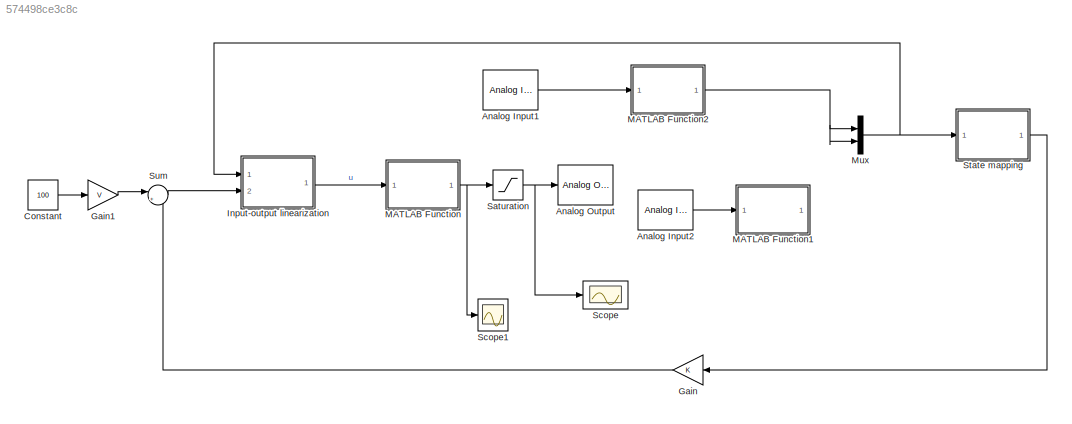
MODEL slx_574498ce3c8c
KIND model
CONFIG AbsTol = auto
CONFIG EnableMultiTasking = off
CONFIG FixedStep = auto
CONFIG MaxStep = auto
CONFIG MinStep = auto
CONFIG RelTol = 1e-3
CONFIG SampleTimeConstraint = Unconstrained
CONFIG SolverName = VariableStepAuto
CONFIG StartTime = 0.0
CONFIG StopTime = 300
BLOCK [Reference] Analog Input1  REF=sldrtlib/Analog Input
  AttributesFormatString = National Instruments\nPCIe-6321 [auto]
  Ports = [0, 1]
  SourceBlock = sldrtlib/Analog Input
  SourceProductBaseCode = WT
  SourceType = Simulink Desktop Real-Time Analog Input
BLOCK [Reference] Analog Input2  REF=sldrtlib/Analog Input
  AttributesFormatString = National Instruments\nPCIe-6321 [auto]
  Ports = [0, 1]
  SourceBlock = sldrtlib/Analog Input
  SourceProductBaseCode = WT
  SourceType = Simulink Desktop Real-Time Analog Input
BLOCK [Reference] Analog Output  REF=sldrtlib/Analog Output
  AttributesFormatString = National Instruments\nPCIe-6321 [auto]
  Ports = [1]
  SourceBlock = sldrtlib/Analog Output
  SourceProductBaseCode = WT
  SourceType = Simulink Desktop Real-Time Analog Output
BLOCK [Constant] Constant
  Value = 100
BLOCK [Gain] Gain
  Gain = K
  Multiplication = Matrix(K*u)
BLOCK [Gain] Gain1
  Gain = V
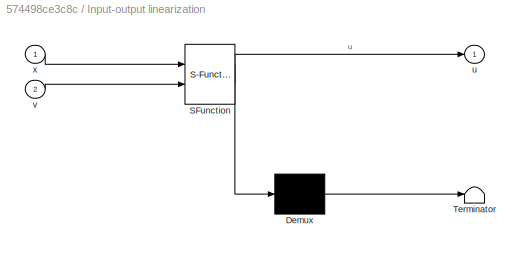
BLOCK [SubSystem] Input-output linearization
  ErrorFcn = Stateflow.Translate.translate
  PermitHierarchicalResolution = ExplicitOnly
  Ports = [2, 1]
  RequestExecContextInheritance = off
  SFBlockType = MATLAB Function
  TreatAsAtomicUnit = on
BLOCK [Demux] Input-output linearization/ Demux 
  Outputs = 1
  Ports = [1, 1]
BLOCK [S-Function] Input-output linearization/ SFunction 
  EnableBusSupport = on
  FunctionName = sf_sfun
  Parameters = p
  PortCounts = [2 2]
  Ports = [2, 2]
  SFcnIsStateOwnerBlock = off
  SFunctionDeploymentMode = off
  Tag = Stateflow S-Function 3
BLOCK [Terminator] Input-output linearization/ Terminator 
BLOCK [Outport] Input-output linearization/u
BLOCK [Inport] Input-output linearization/v
  Port = 2
BLOCK [Inport] Input-output linearization/x
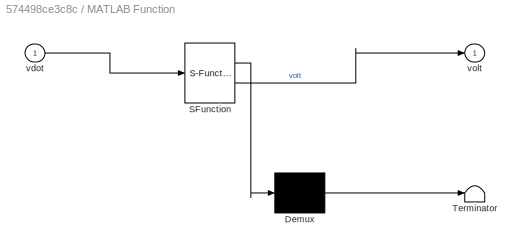
BLOCK [SubSystem] MATLAB Function
  ErrorFcn = Stateflow.Translate.translate
  PermitHierarchicalResolution = ExplicitOnly
  Ports = [1, 1]
  RequestExecContextInheritance = off
  SFBlockType = MATLAB Function
  TreatAsAtomicUnit = on
BLOCK [Demux] MATLAB Function/ Demux 
  Outputs = 1
  Ports = [1, 1]
BLOCK [S-Function] MATLAB Function/ SFunction 
  EnableBusSupport = on
  FunctionName = sf_sfun
  PortCounts = [1 2]
  Ports = [1, 2]
  SFcnIsStateOwnerBlock = off
  SFunctionDeploymentMode = off
  Tag = Stateflow S-Function 5
BLOCK [Terminator] MATLAB Function/ Terminator 
BLOCK [Inport] MATLAB Function/vdot
BLOCK [Outport] MATLAB Function/volt
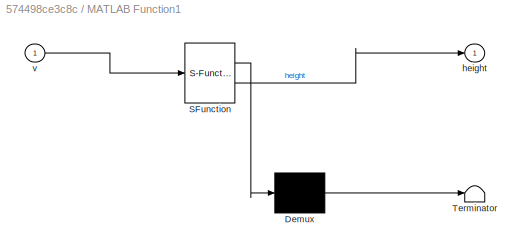
BLOCK [SubSystem] MATLAB Function1
  ErrorFcn = Stateflow.Translate.translate
  PermitHierarchicalResolution = ExplicitOnly
  Ports = [1, 1]
  RequestExecContextInheritance = off
  SFBlockType = MATLAB Function
  TreatAsAtomicUnit = on
BLOCK [Demux] MATLAB Function1/ Demux 
  Outputs = 1
  Ports = [1, 1]
BLOCK [S-Function] MATLAB Function1/ SFunction 
  EnableBusSupport = on
  FunctionName = sf_sfun
  PortCounts = [1 2]
  Ports = [1, 2]
  SFcnIsStateOwnerBlock = off
  SFunctionDeploymentMode = off
  Tag = Stateflow S-Function 4
BLOCK [Terminator] MATLAB Function1/ Terminator 
BLOCK [Outport] MATLAB Function1/height
BLOCK [Inport] MATLAB Function1/v
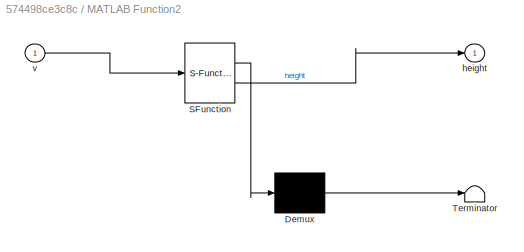
BLOCK [SubSystem] MATLAB Function2
  ErrorFcn = Stateflow.Translate.translate
  PermitHierarchicalResolution = ExplicitOnly
  Ports = [1, 1]
  RequestExecContextInheritance = off
  SFBlockType = MATLAB Function
  TreatAsAtomicUnit = on
BLOCK [Demux] MATLAB Function2/ Demux 
  Outputs = 1
  Ports = [1, 1]
BLOCK [S-Function] MATLAB Function2/ SFunction 
  EnableBusSupport = on
  FunctionName = sf_sfun
  PortCounts = [1 2]
  Ports = [1, 2]
  SFcnIsStateOwnerBlock = off
  SFunctionDeploymentMode = off
  Tag = Stateflow S-Function 1
BLOCK [Terminator] MATLAB Function2/ Terminator 
BLOCK [Outport] MATLAB Function2/height
BLOCK [Inport] MATLAB Function2/v
BLOCK [Mux] Mux
  DisplayOption = bar
  Inputs = 2
  Ports = [2, 1]
BLOCK [Saturate] Saturation
  LowerLimit = 0
  UpperLimit = 10
BLOCK [Scope] Scope
  Floating = off
  NumInputPorts = 1
  Ports = [1]
  ScopeSpecificationString = Simulink.scopes.TimeScopeBlockCfg('CurrentConfiguration', extmgr.ConfigurationSet(extmgr.Configuration('Core','General UI',true),extmgr.Configuration('Core','Source UI',true),extmgr.Configuration('Sources','WiredSimulink',true),extmgr.Configuration('Visuals','Time Domain',true,'SerializedDisplays',{struct('MinYLimReal','-0.54253','MaxYLimReal','11.17139','YLabelReal','','MinYLimMag','0.00000','Max...<+1415ch>
BLOCK [Scope] Scope1
  Floating = off
  NumInputPorts = 1
  Ports = [1]
  ScopeSpecificationString = Simulink.scopes.TimeScopeBlockCfg('CurrentConfiguration', extmgr.ConfigurationSet(extmgr.Configuration('Core','General UI',true),extmgr.Configuration('Core','Source UI',true),extmgr.Configuration('Sources','WiredSimulink',true,'DataLoggingVariableName','ScopeData1'),extmgr.Configuration('Visuals','Time Domain',true,'SerializedDisplays',{struct('MinYLimReal','-1.50893','MaxYLimReal','19.86903','YLa...<+1457ch>
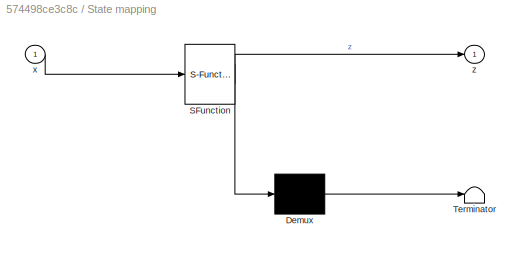
BLOCK [SubSystem] State mapping
  ErrorFcn = Stateflow.Translate.translate
  PermitHierarchicalResolution = ExplicitOnly
  Ports = [1, 1]
  RequestExecContextInheritance = off
  SFBlockType = MATLAB Function
  TreatAsAtomicUnit = on
BLOCK [Demux] State mapping/ Demux 
  Outputs = 1
  Ports = [1, 1]
BLOCK [S-Function] State mapping/ SFunction 
  EnableBusSupport = on
  FunctionName = sf_sfun
  Parameters = p
  PortCounts = [1 2]
  Ports = [1, 2]
  SFcnIsStateOwnerBlock = off
  SFunctionDeploymentMode = off
  Tag = Stateflow S-Function 2
BLOCK [Terminator] State mapping/ Terminator 
BLOCK [Inport] State mapping/x
BLOCK [Outport] State mapping/z
  VectorParamsAs1DForOutWhenUnconnected = off
BLOCK [Sum] Sum
  Inputs = |+-
  Ports = [2, 1]
LINE Analog Input1:1 -> MATLAB Function2:1
LINE Analog Input2:1 -> MATLAB Function1:1
LINE Constant:1 -> Gain1:1
LINE Gain1:1 -> Sum:1
LINE Gain:1 -> Sum:2
LINE Input-output linearization:1 -> MATLAB Function:1
NET MATLAB Function2:1 -> Mux:1, Mux:2
NET MATLAB Function:1 -> Saturation:1, Scope1:1
NET Mux:1 -> Input-output linearization:1, State mapping:1
NET Saturation:1 -> Analog Output:1, Scope:1
LINE State mapping:1 -> Gain:1
LINE Sum:1 -> Input-output linearization:2
note: NET lines group one-source signal fan-out (src -> all destinations, sorted); 1:1 wires keep LINE
CHART State mapping states=1 transitions=1
  STATE_LABEL 'eML_blk_kernel()'
  STATE_LABEL 'SCRIPT:\nfunction z = fcn(x,p)\n%#codegen\nz = 0*x; % assignment before subscripting\nz(1) = x(2);\nz(2) = p.a*sqrt(x(1))-p.a*sqrt(x(2));'
CHART Input-output linearization states=1 transitions=1
  STATE_LABEL 'eML_blk_kernel()'
  STATE_LABEL 'SCRIPT:\nfunction u = fcn(x,v,p)\nu = 0;\nu = (1/16.666)*p.rho*p.At*sqrt(x(1))*(2*v/p.a+...\n    p.a*sqrt(x(1))/sqrt(x(2)));\n\n'
CHART MATLAB Function1 states=1 transitions=1
  STATE_LABEL 'eML_blk_kernel()'
  STATE_LABEL 'SCRIPT:\nfunction height = fcn(v)\n\nheight = 115.3624*v-237.3624\n'
CHART MATLAB Function states=1 transitions=1
  STATE_LABEL 'eML_blk_kernel()'
  STATE_LABEL 'SCRIPT:\nfunction volt = fcn(vdot)\n\nvolt = (1/100)*((-500/60)+16.666*vdot);\n\n'
CHART MATLAB Function2 states=1 transitions=1
  STATE_LABEL 'eML_blk_kernel()'
  STATE_LABEL 'SCRIPT:\nfunction height = fcn(v)\n\nheight = 115.3624*v-237.3624\n'
CHART  states=0 transitions=0
CHART  states=0 transitions=0
CHART  states=0 transitions=0
CHART  states=0 transitions=0
CHART  states=0 transitions=0
